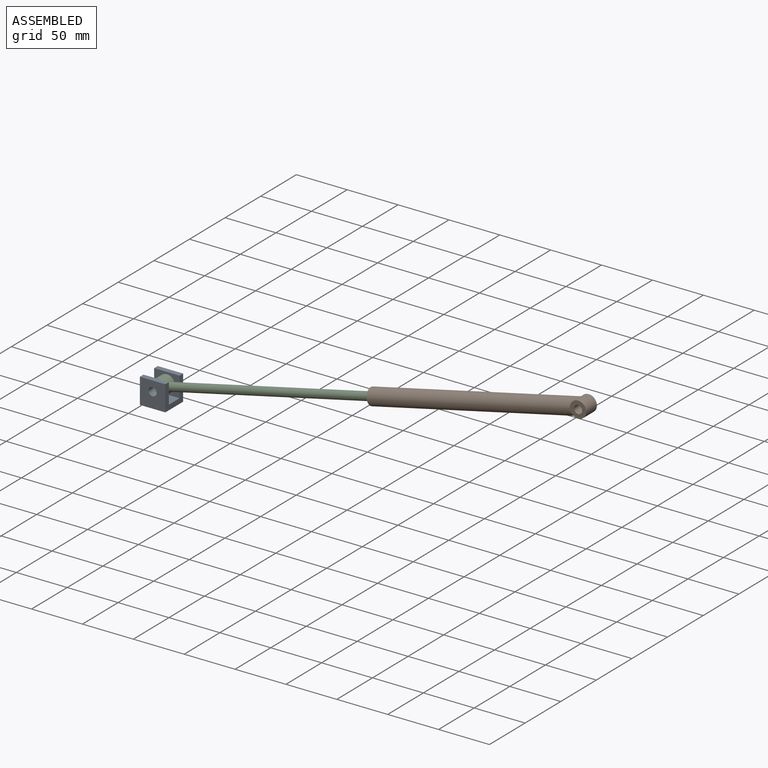
[diagram: assembled view]
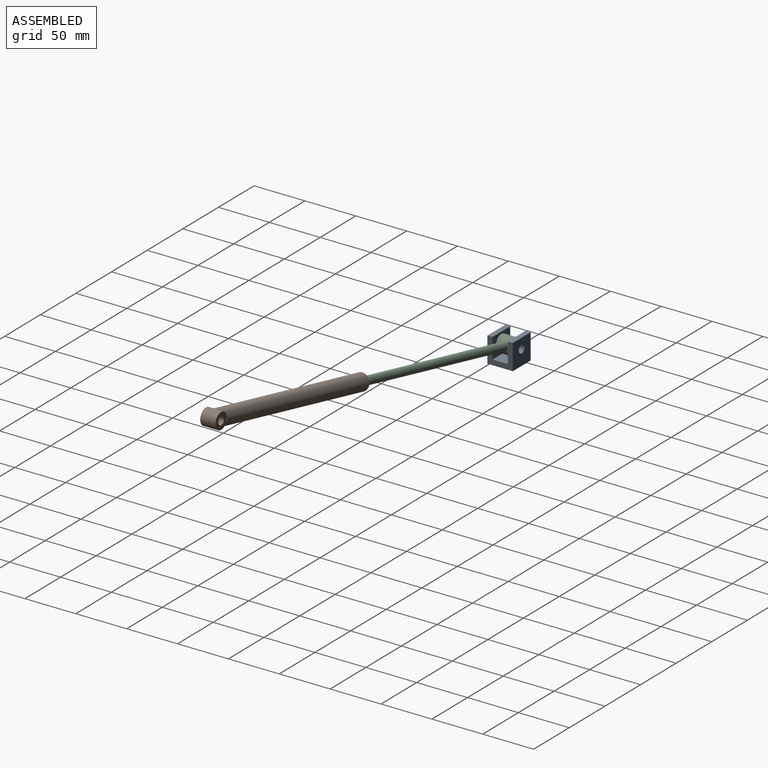
[diagram: assembled view, second angle]
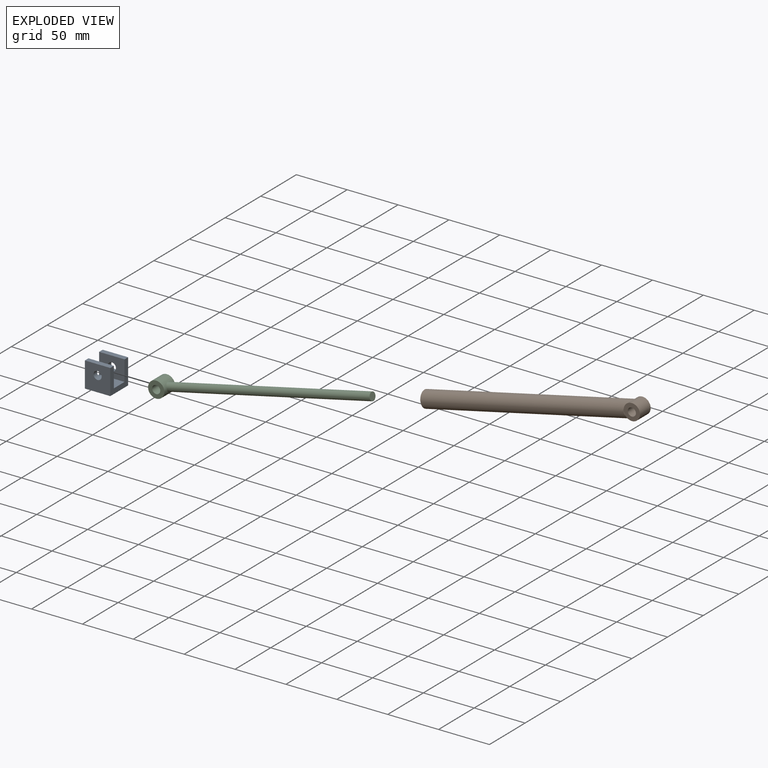
[diagram: exploded view]
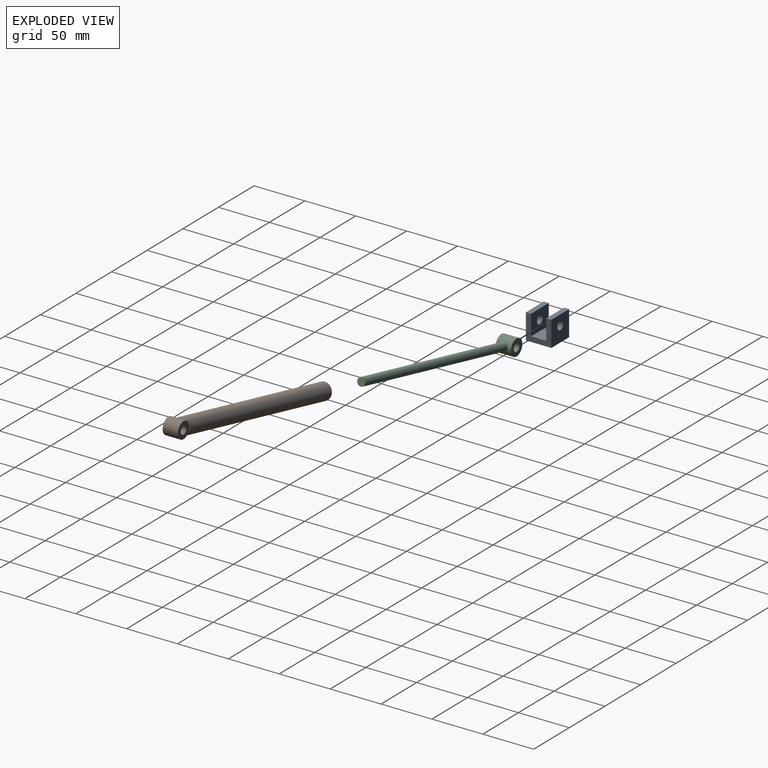
[diagram: exploded view, second angle]
ASSEMBLY  parts=3 mates=2
PART A: 12 faces, bbox 25x25x25 mm
  f0: plane 25x25mm, normal (1,0,0), area 325mm2, adj f2,f3,f4,f5,f6,f7,f8,f9
  f1: plane 25x25mm, normal (-1,0,0), area 325mm2, adj f2,f3,f4,f5,f6,f7,f8,f9
  f2: plane 25x5mm, normal (0,0,1), area 125mm2, adj f0,f1,f6,f9
  f3: plane 25x5mm, normal (0,0,1), area 125mm2, adj f0,f1,f5,f8
  f4: plane 25x25mm, normal (0,0,-1), area 625mm2, adj f0,f1,f5,f6
  f5: plane 25x25mm, normal (0,-1,0), area 574.7mm2, adj f0,f1,f3,f4,f11
  f6: plane 25x25mm, normal (0,1,0), area 574.7mm2, adj f0,f1,f2,f4,f10
  f7: plane 25x15mm, normal (0,0,1), area 375mm2, adj f0,f1,f8,f9
  f8: plane 25x20mm, normal (0,1,0), area 449.7mm2, adj f0,f1,f3,f7,f11
  f9: plane 25x20mm, normal (0,-1,0), area 449.7mm2, adj f0,f1,f2,f7,f10
  f10: cylinder r=4mm len=8mm, axis (0,-1,0), area 125.7mm2, adj f6,f9
  f11: cylinder r=4mm len=8mm, axis (0,-1,0), area 125.7mm2, adj f5,f8
PART B: 8 faces, bbox 220.5x16x16 mm
  f0: cylinder r=4mm len=15mm, axis (0,1,0), area 377mm2, adj f1,f2
  f1: plane 16x16mm, normal (0,-1,0), area 150.8mm2, adj f0,f3,f5
  f2: plane 16x16mm, normal (0,1,0), area 150.8mm2, adj f0,f3,f4
  f3: cylinder r=8mm len=16mm, axis (0,1,0), area 501.8mm2, adj f1,f2,f6
  f4: cylinder r=8mm len=5.57mm, axis (0,1,0), area 1.9mm2, adj f2,f6
  f5: cylinder r=8mm len=5.57mm, axis (0,1,0), area 1.9mm2, adj f1,f6
  f6: cylinder r=8mm len=212.5mm, axis (-1,0,0), area 10425.4mm2, adj f3,f4,f5,f7
  f7: plane 16x16mm, normal (-1,0,0), area 201.1mm2, adj f6
PART C: 6 faces, bbox 220.5x15x16 mm
  f0: cylinder r=4mm len=205.57mm, axis (-1,0,0), area 5152.9mm2, adj f4,f5
  f1: plane 16x16mm, normal (0,-1,0), area 150.8mm2, adj f3,f4
  f2: plane 16x16mm, normal (0,1,0), area 150.8mm2, adj f3,f4
  f3: cylinder r=4mm len=15mm, axis (0,1,0), area 377mm2, adj f1,f2
  f4: cylinder r=8mm len=16mm, axis (0,1,0), area 702mm2, adj f0,f1,f2
  f5: plane 8x8mm, normal (1,0,0), area 50.3mm2, adj f0
PLACE A rot(axis=(0,-1,0),0deg) t=(-143.24,31.65,-52.63)mm fixed
PLACE B rot(axis=(0,-1,0),12.7deg) t=(-139.65,31.65,-55.01)mm
PLACE C rot(axis=(0,-1,0),12.7deg) t=(-139.65,31.65,-55.01)mm
MATE slider C.f0 <-> B.f6  axis (0.98,0,0.22) through (76.59,19.15,8.96)mm
MATE revolute A.f10 <-> C.f3  axis (0,-1,0) through (-130.74,26.65,-37.63)mm
